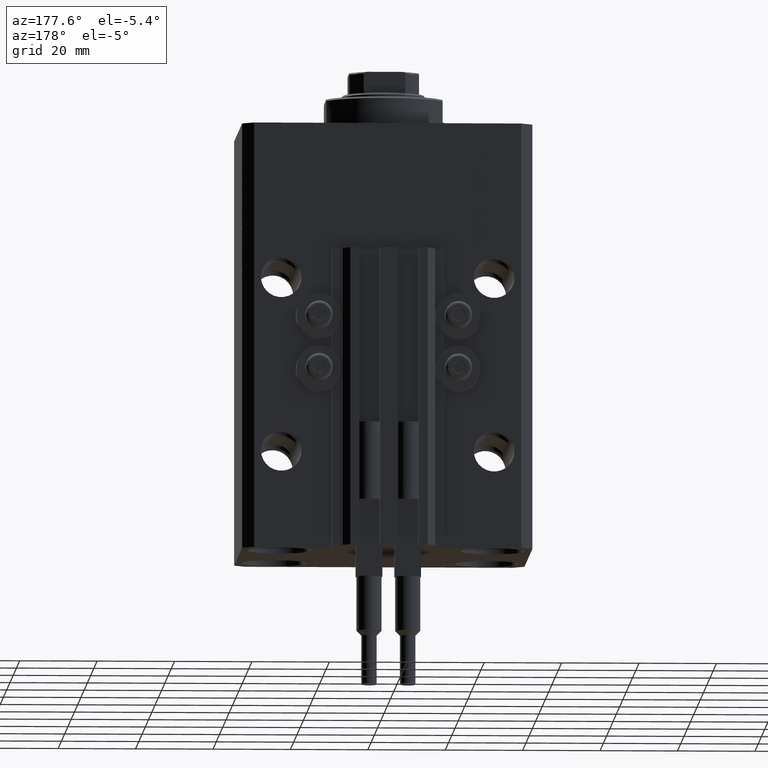
[diagram: clean part render]
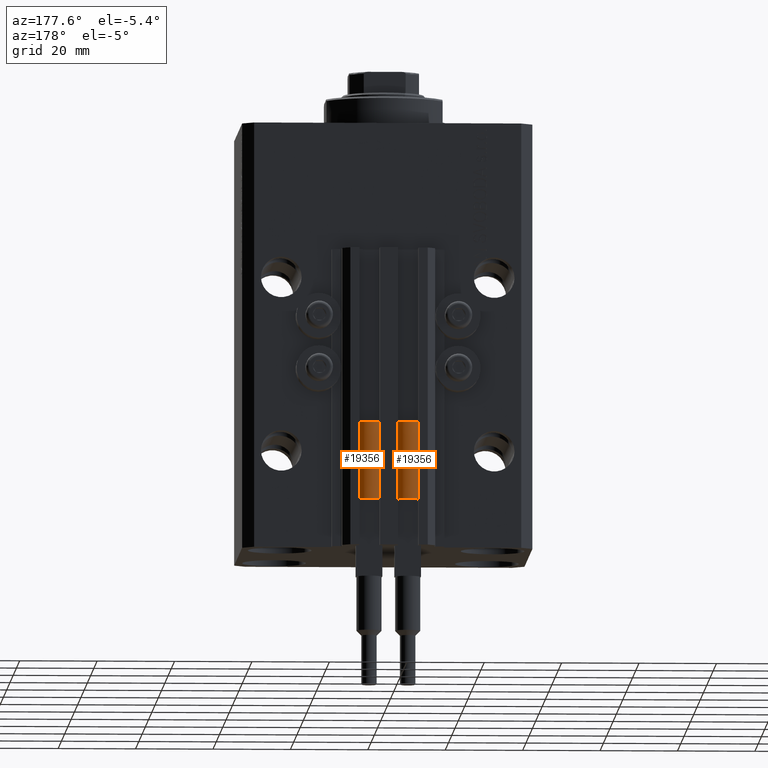
[diagram: same view with one multi-face feature highlighted, each face labeled with its STEP entity id]
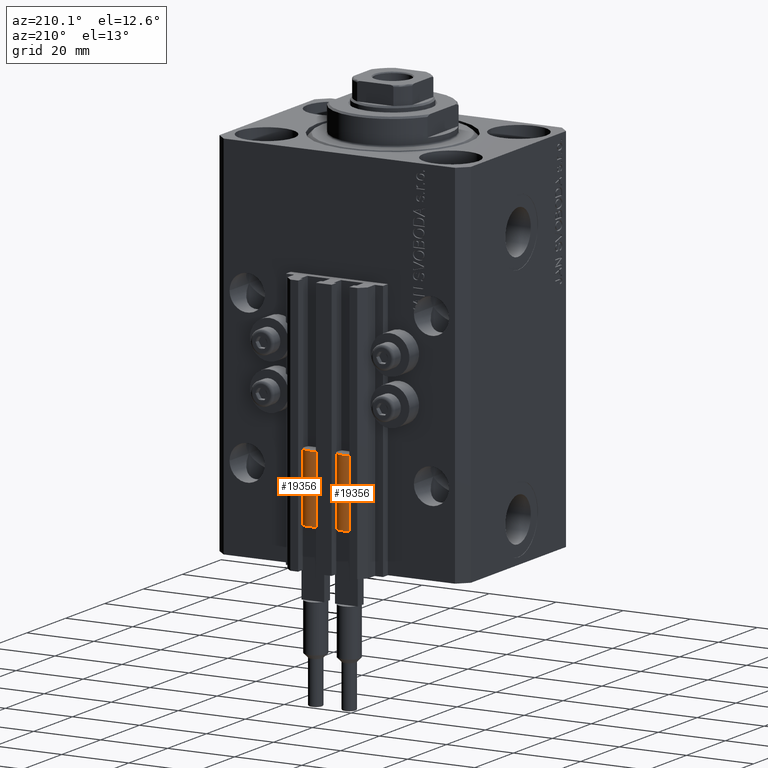
[diagram: same view with one multi-face feature highlighted, each face labeled with its STEP entity id]
A machine part, auxiliary view. The highlighted faces form ONE feature: a constant-radius fillet chain: 2 tangent blend faces with common blend radius 3.4 mm. The faces share edges in the B-rep.
A second angle (auxiliary view) of the same feature is appended — it is thin or edge-on in the first view.
Their STEP definitions:
[1] entity #19356 (Cylinder):
#150 = CARTESIAN_POINT ( 'NONE',  ( -3.051229260478471428, 1.500000000000000000, 20.00000000000000000 ) ) ;
#2112 = ORIENTED_EDGE ( 'NONE', *, *, #25934, .T. ) ;
#3717 = VERTEX_POINT ( 'NONE', #47092 ) ;
#3818 = LINE ( 'NONE', #22822, #25185 ) ;
#5204 = CARTESIAN_POINT ( 'NONE',  ( 0.000000000000000000, 0.000000000000000000, 20.00000000000000000 ) ) ;
#8604 = VERTEX_POINT ( 'NONE', #45834 ) ;
#9040 = DIRECTION ( 'NONE',  ( -0.000000000000000000, -0.000000000000000000, -1.000000000000000000 ) ) ;
#9587 = CYLINDRICAL_SURFACE ( 'NONE', #40713, 3.400000000000000355 ) ;
#10138 = EDGE_CURVE ( 'NONE', #23756, #36009, #19511, .T. ) ;
#13112 = DIRECTION ( 'NONE',  ( 1.000000000000000000, 0.000000000000000000, 0.000000000000000000 ) ) ;
#13140 = DIRECTION ( 'NONE',  ( 0.000000000000000000, 0.000000000000000000, 1.000000000000000000 ) ) ;
#13384 = CARTESIAN_POINT ( 'NONE',  ( 0.000000000000000000, 0.000000000000000000, 0.000000000000000000 ) ) ;
#13867 = DIRECTION ( 'NONE',  ( 1.000000000000000000, 0.000000000000000000, 0.000000000000000000 ) ) ;
#14336 = CIRCLE ( 'NONE', #21322, 3.400000000000000355 ) ;
#14900 = DIRECTION ( 'NONE',  ( 0.000000000000000000, 0.000000000000000000, 1.000000000000000000 ) ) ;
#14977 = EDGE_CURVE ( 'NONE', #16933, #23756, #25162, .T. ) ;
#16554 = CARTESIAN_POINT ( 'NONE',  ( 3.051229260478471428, 1.500000000000000000, 20.00000000000000000 ) ) ;
#16933 = VERTEX_POINT ( 'NONE', #32975 ) ;
#17629 = EDGE_CURVE ( 'NONE', #36009, #3717, #14336, .T. ) ;
#19356 = ADVANCED_FACE ( 'NONE', ( #32005 ), #9587, .T. ) ;
#19511 = CIRCLE ( 'NONE', #24182, 3.400000000000000355 ) ;
#19944 = EDGE_CURVE ( 'NONE', #3717, #22851, #3818, .T. ) ;
#20059 = DIRECTION ( 'NONE',  ( -0.000000000000000000, -0.000000000000000000, -1.000000000000000000 ) ) ;
#20140 = AXIS2_PLACEMENT_3D ( 'NONE', #13384, #13140, #32617 ) ;
#20164 = DIRECTION ( 'NONE',  ( 0.000000000000000000, 0.000000000000000000, 1.000000000000000000 ) ) ;
#21197 = ORIENTED_EDGE ( 'NONE', *, *, #28820, .T. ) ;
#21240 = ORIENTED_EDGE ( 'NONE', *, *, #17629, .F. ) ;
#21322 = AXIS2_PLACEMENT_3D ( 'NONE', #33435, #14900, #43058 ) ;
#21546 = EDGE_LOOP ( 'NONE', ( #27720, #21197, #2112, #23048, #21240, #28974 ) ) ;
#22822 = CARTESIAN_POINT ( 'NONE',  ( -3.400000000000000355, 0.000000000000000000, 20.00000000000000000 ) ) ;
#22851 = VERTEX_POINT ( 'NONE', #32069 ) ;
#23048 = ORIENTED_EDGE ( 'NONE', *, *, #19944, .F. ) ;
#23756 = VERTEX_POINT ( 'NONE', #16554 ) ;
#24182 = AXIS2_PLACEMENT_3D ( 'NONE', #31870, #20164, #13112 ) ;
#25162 = CIRCLE ( 'NONE', #39171, 3.400000000000000355 ) ;
#25185 = VECTOR ( 'NONE', #29908, 1000.000000000000000 ) ;
#25934 = EDGE_CURVE ( 'NONE', #8604, #22851, #27962, .T. ) ;
#27720 = ORIENTED_EDGE ( 'NONE', *, *, #14977, .F. ) ;
#27962 = CIRCLE ( 'NONE', #20140, 3.400000000000000355 ) ;
#28820 = EDGE_CURVE ( 'NONE', #16933, #8604, #35117, .T. ) ;
#28974 = ORIENTED_EDGE ( 'NONE', *, *, #10138, .F. ) ;
#29908 = DIRECTION ( 'NONE',  ( -0.000000000000000000, -0.000000000000000000, -1.000000000000000000 ) ) ;
#31116 = VECTOR ( 'NONE', #9040, 1000.000000000000000 ) ;
#31218 = CARTESIAN_POINT ( 'NONE',  ( 3.400000000000000355, 4.163799117101001052E-16, 20.00000000000000000 ) ) ;
#31870 = CARTESIAN_POINT ( 'NONE',  ( 0.000000000000000000, 0.000000000000000000, 20.00000000000000000 ) ) ;
#32005 = FACE_OUTER_BOUND ( 'NONE', #21546, .T. ) ;
#32069 = CARTESIAN_POINT ( 'NONE',  ( -3.400000000000000355, 0.000000000000000000, 0.000000000000000000 ) ) ;
#32617 = DIRECTION ( 'NONE',  ( 1.000000000000000000, 0.000000000000000000, 0.000000000000000000 ) ) ;
#32975 = CARTESIAN_POINT ( 'NONE',  ( 3.400000000000000355, 0.000000000000000000, 20.00000000000000000 ) ) ;
#33347 = CARTESIAN_POINT ( 'NONE',  ( 0.000000000000000000, 0.000000000000000000, 20.00000000000000000 ) ) ;
#33435 = CARTESIAN_POINT ( 'NONE',  ( 0.000000000000000000, 0.000000000000000000, 20.00000000000000000 ) ) ;
#34938 = DIRECTION ( 'NONE',  ( -1.000000000000000000, 0.000000000000000000, 0.000000000000000000 ) ) ;
#35117 = LINE ( 'NONE', #31218, #31116 ) ;
#36009 = VERTEX_POINT ( 'NONE', #150 ) ;
#39171 = AXIS2_PLACEMENT_3D ( 'NONE', #33347, #40169, #13867 ) ;
#40169 = DIRECTION ( 'NONE',  ( 0.000000000000000000, 0.000000000000000000, 1.000000000000000000 ) ) ;
#40713 = AXIS2_PLACEMENT_3D ( 'NONE', #5204, #20059, #34938 ) ;
#43058 = DIRECTION ( 'NONE',  ( 1.000000000000000000, 0.000000000000000000, 0.000000000000000000 ) ) ;
#45834 = CARTESIAN_POINT ( 'NONE',  ( 3.400000000000000355, 4.163799117101001052E-16, 0.000000000000000000 ) ) ;
#47092 = CARTESIAN_POINT ( 'NONE',  ( -3.399999999999999467, -4.915049848600952119E-16, 20.00000000000000000 ) ) ;
[2] entity #19356 (Cylinder):
#150 = CARTESIAN_POINT ( 'NONE',  ( -3.051229260478471428, 1.500000000000000000, 20.00000000000000000 ) ) ;
#2112 = ORIENTED_EDGE ( 'NONE', *, *, #25934, .T. ) ;
#3717 = VERTEX_POINT ( 'NONE', #47092 ) ;
#3818 = LINE ( 'NONE', #22822, #25185 ) ;
#5204 = CARTESIAN_POINT ( 'NONE',  ( 0.000000000000000000, 0.000000000000000000, 20.00000000000000000 ) ) ;
#8604 = VERTEX_POINT ( 'NONE', #45834 ) ;
#9040 = DIRECTION ( 'NONE',  ( -0.000000000000000000, -0.000000000000000000, -1.000000000000000000 ) ) ;
#9587 = CYLINDRICAL_SURFACE ( 'NONE', #40713, 3.400000000000000355 ) ;
#10138 = EDGE_CURVE ( 'NONE', #23756, #36009, #19511, .T. ) ;
#13112 = DIRECTION ( 'NONE',  ( 1.000000000000000000, 0.000000000000000000, 0.000000000000000000 ) ) ;
#13140 = DIRECTION ( 'NONE',  ( 0.000000000000000000, 0.000000000000000000, 1.000000000000000000 ) ) ;
#13384 = CARTESIAN_POINT ( 'NONE',  ( 0.000000000000000000, 0.000000000000000000, 0.000000000000000000 ) ) ;
#13867 = DIRECTION ( 'NONE',  ( 1.000000000000000000, 0.000000000000000000, 0.000000000000000000 ) ) ;
#14336 = CIRCLE ( 'NONE', #21322, 3.400000000000000355 ) ;
#14900 = DIRECTION ( 'NONE',  ( 0.000000000000000000, 0.000000000000000000, 1.000000000000000000 ) ) ;
#14977 = EDGE_CURVE ( 'NONE', #16933, #23756, #25162, .T. ) ;
#16554 = CARTESIAN_POINT ( 'NONE',  ( 3.051229260478471428, 1.500000000000000000, 20.00000000000000000 ) ) ;
#16933 = VERTEX_POINT ( 'NONE', #32975 ) ;
#17629 = EDGE_CURVE ( 'NONE', #36009, #3717, #14336, .T. ) ;
#19356 = ADVANCED_FACE ( 'NONE', ( #32005 ), #9587, .T. ) ;
#19511 = CIRCLE ( 'NONE', #24182, 3.400000000000000355 ) ;
#19944 = EDGE_CURVE ( 'NONE', #3717, #22851, #3818, .T. ) ;
#20059 = DIRECTION ( 'NONE',  ( -0.000000000000000000, -0.000000000000000000, -1.000000000000000000 ) ) ;
#20140 = AXIS2_PLACEMENT_3D ( 'NONE', #13384, #13140, #32617 ) ;
#20164 = DIRECTION ( 'NONE',  ( 0.000000000000000000, 0.000000000000000000, 1.000000000000000000 ) ) ;
#21197 = ORIENTED_EDGE ( 'NONE', *, *, #28820, .T. ) ;
#21240 = ORIENTED_EDGE ( 'NONE', *, *, #17629, .F. ) ;
#21322 = AXIS2_PLACEMENT_3D ( 'NONE', #33435, #14900, #43058 ) ;
#21546 = EDGE_LOOP ( 'NONE', ( #27720, #21197, #2112, #23048, #21240, #28974 ) ) ;
#22822 = CARTESIAN_POINT ( 'NONE',  ( -3.400000000000000355, 0.000000000000000000, 20.00000000000000000 ) ) ;
#22851 = VERTEX_POINT ( 'NONE', #32069 ) ;
#23048 = ORIENTED_EDGE ( 'NONE', *, *, #19944, .F. ) ;
#23756 = VERTEX_POINT ( 'NONE', #16554 ) ;
#24182 = AXIS2_PLACEMENT_3D ( 'NONE', #31870, #20164, #13112 ) ;
#25162 = CIRCLE ( 'NONE', #39171, 3.400000000000000355 ) ;
#25185 = VECTOR ( 'NONE', #29908, 1000.000000000000000 ) ;
#25934 = EDGE_CURVE ( 'NONE', #8604, #22851, #27962, .T. ) ;
#27720 = ORIENTED_EDGE ( 'NONE', *, *, #14977, .F. ) ;
#27962 = CIRCLE ( 'NONE', #20140, 3.400000000000000355 ) ;
#28820 = EDGE_CURVE ( 'NONE', #16933, #8604, #35117, .T. ) ;
#28974 = ORIENTED_EDGE ( 'NONE', *, *, #10138, .F. ) ;
#29908 = DIRECTION ( 'NONE',  ( -0.000000000000000000, -0.000000000000000000, -1.000000000000000000 ) ) ;
#31116 = VECTOR ( 'NONE', #9040, 1000.000000000000000 ) ;
#31218 = CARTESIAN_POINT ( 'NONE',  ( 3.400000000000000355, 4.163799117101001052E-16, 20.00000000000000000 ) ) ;
#31870 = CARTESIAN_POINT ( 'NONE',  ( 0.000000000000000000, 0.000000000000000000, 20.00000000000000000 ) ) ;
#32005 = FACE_OUTER_BOUND ( 'NONE', #21546, .T. ) ;
#32069 = CARTESIAN_POINT ( 'NONE',  ( -3.400000000000000355, 0.000000000000000000, 0.000000000000000000 ) ) ;
#32617 = DIRECTION ( 'NONE',  ( 1.000000000000000000, 0.000000000000000000, 0.000000000000000000 ) ) ;
#32975 = CARTESIAN_POINT ( 'NONE',  ( 3.400000000000000355, 0.000000000000000000, 20.00000000000000000 ) ) ;
#33347 = CARTESIAN_POINT ( 'NONE',  ( 0.000000000000000000, 0.000000000000000000, 20.00000000000000000 ) ) ;
#33435 = CARTESIAN_POINT ( 'NONE',  ( 0.000000000000000000, 0.000000000000000000, 20.00000000000000000 ) ) ;
#34938 = DIRECTION ( 'NONE',  ( -1.000000000000000000, 0.000000000000000000, 0.000000000000000000 ) ) ;
#35117 = LINE ( 'NONE', #31218, #31116 ) ;
#36009 = VERTEX_POINT ( 'NONE', #150 ) ;
#39171 = AXIS2_PLACEMENT_3D ( 'NONE', #33347, #40169, #13867 ) ;
#40169 = DIRECTION ( 'NONE',  ( 0.000000000000000000, 0.000000000000000000, 1.000000000000000000 ) ) ;
#40713 = AXIS2_PLACEMENT_3D ( 'NONE', #5204, #20059, #34938 ) ;
#43058 = DIRECTION ( 'NONE',  ( 1.000000000000000000, 0.000000000000000000, 0.000000000000000000 ) ) ;
#45834 = CARTESIAN_POINT ( 'NONE',  ( 3.400000000000000355, 4.163799117101001052E-16, 0.000000000000000000 ) ) ;
#47092 = CARTESIAN_POINT ( 'NONE',  ( -3.399999999999999467, -4.915049848600952119E-16, 20.00000000000000000 ) ) ;